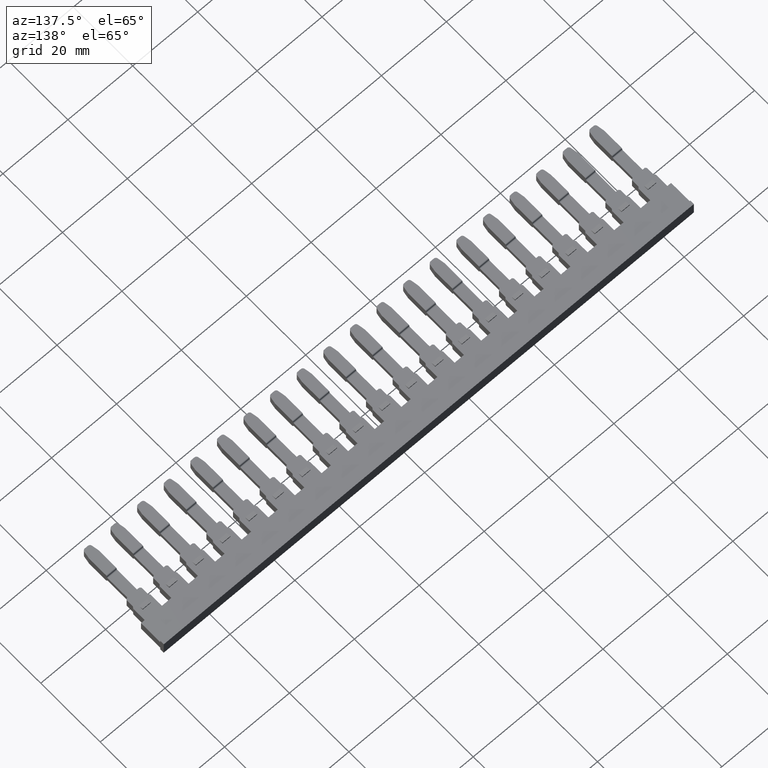
[diagram: clean part render]
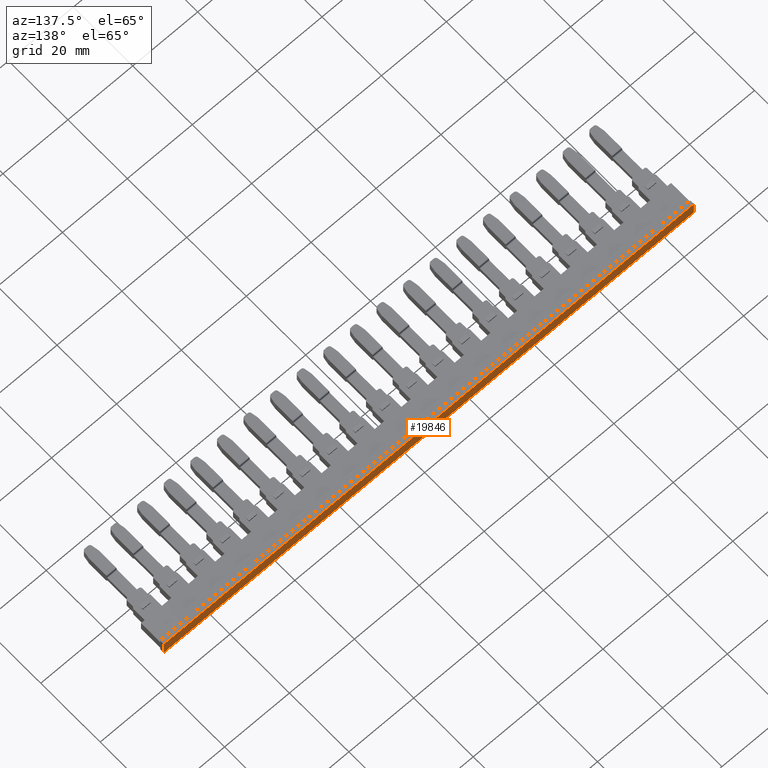
[diagram: same view with one face highlighted and labeled with its STEP entity id]
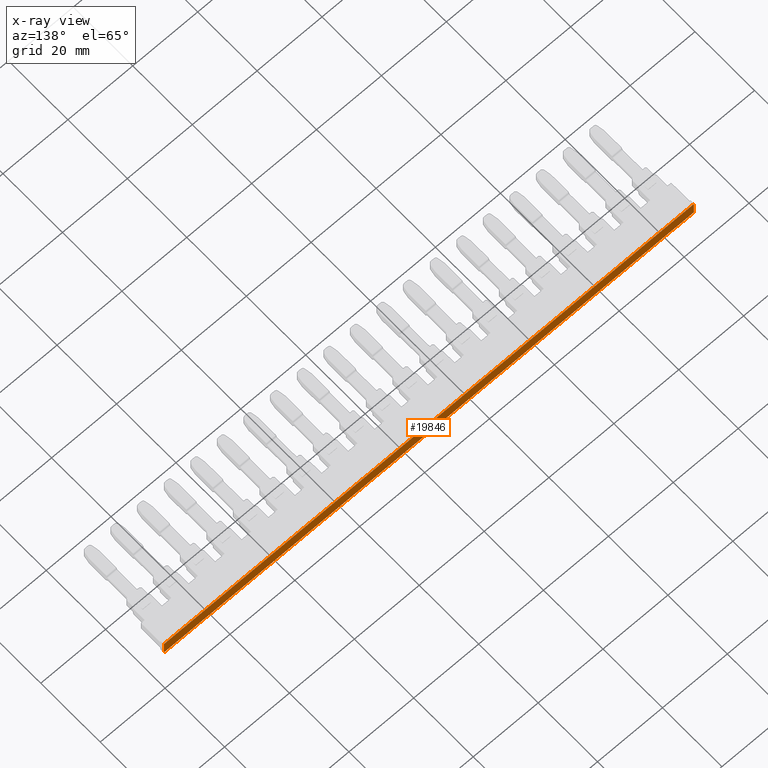
[diagram: x-ray of the same camera — body ghosted, the highlighted face saturated]
A machine part, auxiliary view. The second image highlights one B-rep face of the part: STEP entity #19846.
The next image is the same camera in x-ray: the body ghosted, the highlighted face saturated — about 0% of this face is hidden behind the body in this view.
In plain terms, the highlighted planar face has unit normal (0, -1, 0).
Its self-contained STEP definition (entity closure, byte-faithful):
#1759 = EDGE_CURVE ( 'NONE', #14234, #14112, #11842, .T. ) ;
#1801 = EDGE_CURVE ( 'NONE', #14234, #14142, #11972, .T. ) ;
#1805 = EDGE_CURVE ( 'NONE', #14255, #14112, #11994, .T. ) ;
#1824 = EDGE_CURVE ( 'NONE', #14255, #14142, #12043, .T. ) ;
#4233 = ORIENTED_EDGE ( 'NONE', *, *, #1805, .T. ) ;
#4243 = ORIENTED_EDGE ( 'NONE', *, *, #1759, .F. ) ;
#4265 = ORIENTED_EDGE ( 'NONE', *, *, #1824, .F. ) ;
#4281 = ORIENTED_EDGE ( 'NONE', *, *, #1801, .T. ) ;
#6897 = DIRECTION ( 'NONE',  ( 0.0000000000000000000, -0.0000000000000000000, -1.000000000000000000 ) ) ;
#6910 = PLANE ( 'NONE',  #17272 ) ;
#6921 = FACE_OUTER_BOUND ( 'NONE', #17794, .T. ) ;
#6922 = DIRECTION ( 'NONE',  ( 0.0000000000000000000, -1.000000000000000000, 0.0000000000000000000 ) ) ;
#6928 = CARTESIAN_POINT ( 'NONE',  ( 1130.994470802330200, 674.1078760720547500, 3.000000000000000000 ) ) ;
#9184 = CARTESIAN_POINT ( 'NONE',  ( 1154.994472239529600, 674.1078760720547500, -0.7499999999999997800 ) ) ;
#9196 = CARTESIAN_POINT ( 'NONE',  ( 991.5944708023300800, 674.1078760720547500, 3.750000000000000000 ) ) ;
#9297 = CARTESIAN_POINT ( 'NONE',  ( 991.5944708023300800, 674.1078760720547500, -0.7499999999999997800 ) ) ;
#9313 = CARTESIAN_POINT ( 'NONE',  ( 1154.994472239529600, 674.1078760720547500, 3.750000000000000000 ) ) ;
#11833 = DIRECTION ( 'NONE',  ( -1.000000000000000000, -0.0000000000000000000, -0.0000000000000000000 ) ) ;
#11842 = LINE ( 'NONE', #11856, #22397 ) ;
#11856 = CARTESIAN_POINT ( 'NONE',  ( 1130.994470802330200, 674.1078760720547500, 3.750000000000000000 ) ) ;
#11936 = CARTESIAN_POINT ( 'NONE',  ( 1154.994472239529600, 674.1078760720547500, 3.000000000000000000 ) ) ;
#11940 = DIRECTION ( 'NONE',  ( -0.0000000000000000000, -0.0000000000000000000, -1.000000000000000000 ) ) ;
#11972 = LINE ( 'NONE', #11936, #22357 ) ;
#11984 = CARTESIAN_POINT ( 'NONE',  ( 991.5944708023300800, 674.1078760720547500, 3.000000000000000000 ) ) ;
#11994 = LINE ( 'NONE', #11984, #22407 ) ;
#12006 = DIRECTION ( 'NONE',  ( -0.0000000000000000000, -0.0000000000000000000, 1.000000000000000000 ) ) ;
#12028 = CARTESIAN_POINT ( 'NONE',  ( 1130.994470802330200, 674.1078760720547500, -0.7499999999999997800 ) ) ;
#12043 = LINE ( 'NONE', #12028, #22440 ) ;
#12055 = DIRECTION ( 'NONE',  ( 1.000000000000000000, 0.0000000000000000000, 0.0000000000000000000 ) ) ;
#14112 = VERTEX_POINT ( 'NONE', #9196 ) ;
#14142 = VERTEX_POINT ( 'NONE', #9184 ) ;
#14234 = VERTEX_POINT ( 'NONE', #9313 ) ;
#14255 = VERTEX_POINT ( 'NONE', #9297 ) ;
#17272 = AXIS2_PLACEMENT_3D ( 'NONE', #6928, #6922, #6897 ) ;
#17794 = EDGE_LOOP ( 'NONE', ( #4281, #4265, #4233, #4243 ) ) ;
#19846 = ADVANCED_FACE ( 'NONE', ( #6921 ), #6910, .F. ) ;
#22357 = VECTOR ( 'NONE', #11940, 1000.000000000000000 ) ;
#22397 = VECTOR ( 'NONE', #11833, 1000.000000000000000 ) ;
#22407 = VECTOR ( 'NONE', #12006, 1000.000000000000000 ) ;
#22440 = VECTOR ( 'NONE', #12055, 1000.000000000000000 ) ;